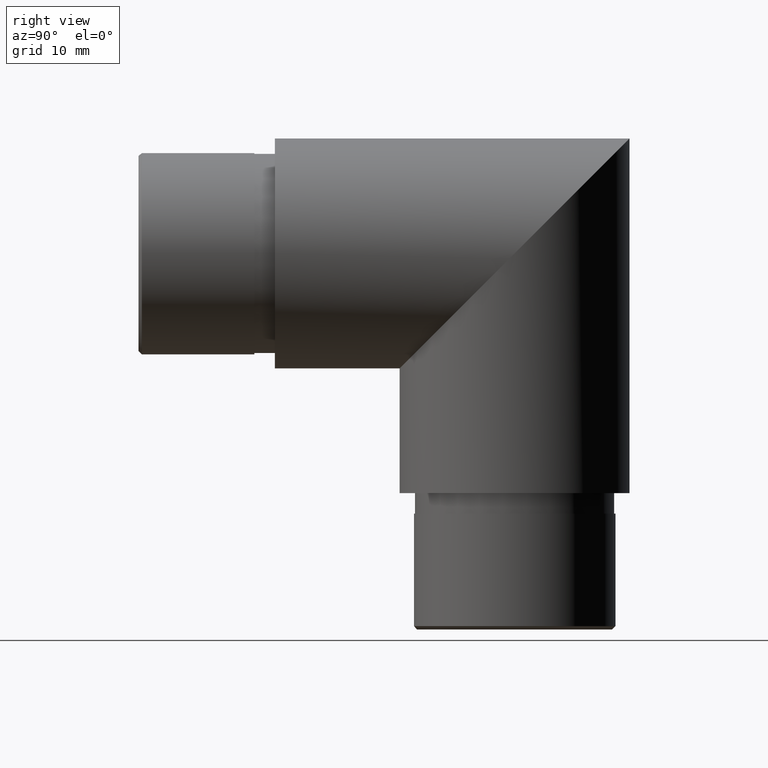
[diagram: clean part render]
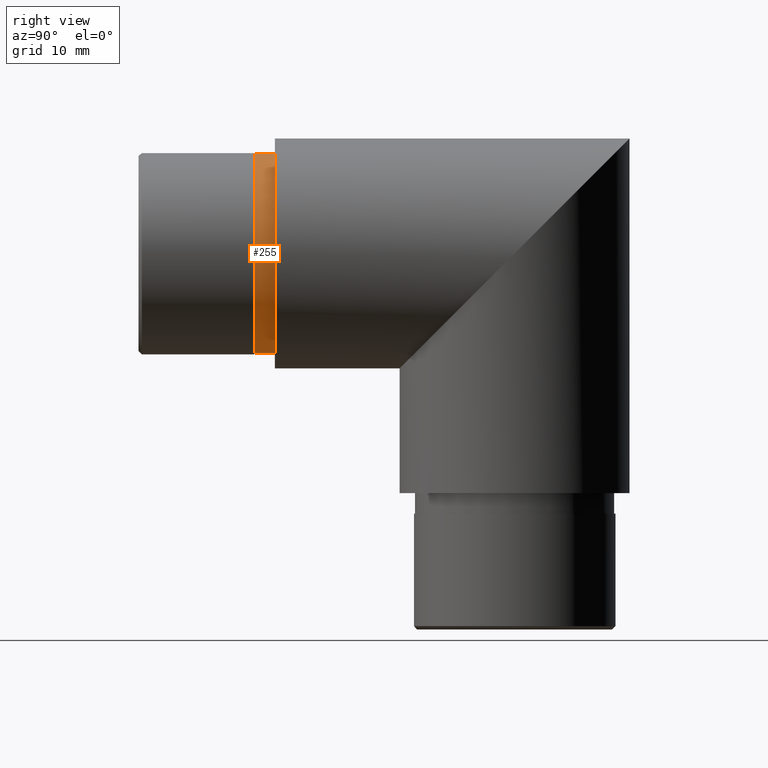
[diagram: same view with one face highlighted and labeled with its STEP entity id]
A machine part, right view. The second image highlights one B-rep face of the part: STEP entity #255.
In plain terms, the highlighted cylindrical surface (bore or boss wall) has radius 14.6 mm, axis along (-0, 1, -0).
Its self-contained STEP definition (entity closure, byte-faithful):
#149 = CIRCLE ( 'NONE', #7950, 14.60000000000000100 ) ;
#255 = ADVANCED_FACE ( 'NONE', ( #4914, #1433 ), #2023, .T. ) ;
#402 = VERTEX_POINT ( 'NONE', #506 ) ;
#506 = CARTESIAN_POINT ( 'NONE',  ( 0.0000000000000000000, 0.0000000000000000000, 14.60000000000000100 ) ) ;
#630 = CARTESIAN_POINT ( 'NONE',  ( 0.0000000000000000000, -3.000000000000000000, -14.60000000000000100 ) ) ;
#975 = EDGE_CURVE ( 'NONE', #402, #402, #149, .T. ) ;
#1433 = FACE_OUTER_BOUND ( 'NONE', #11873, .T. ) ;
#1894 = DIRECTION ( 'NONE',  ( 0.0000000000000000000, 0.0000000000000000000, -1.000000000000000000 ) ) ;
#2023 = CYLINDRICAL_SURFACE ( 'NONE', #4328, 14.60000000000000100 ) ;
#2721 = CARTESIAN_POINT ( 'NONE',  ( 0.0000000000000000000, 0.0000000000000000000, 0.0000000000000000000 ) ) ;
#2920 = DIRECTION ( 'NONE',  ( 0.0000000000000000000, -1.000000000000000000, 0.0000000000000000000 ) ) ;
#3666 = DIRECTION ( 'NONE',  ( 0.0000000000000000000, 0.0000000000000000000, 1.000000000000000000 ) ) ;
#4328 = AXIS2_PLACEMENT_3D ( 'NONE', #9208, #5569, #10133 ) ;
#4850 = ORIENTED_EDGE ( 'NONE', *, *, #975, .T. ) ;
#4914 = FACE_OUTER_BOUND ( 'NONE', #7224, .T. ) ;
#5279 = AXIS2_PLACEMENT_3D ( 'NONE', #11127, #2920, #1894 ) ;
#5439 = DIRECTION ( 'NONE',  ( -0.0000000000000000000, -1.000000000000000000, -0.0000000000000000000 ) ) ;
#5569 = DIRECTION ( 'NONE',  ( -0.0000000000000000000, 1.000000000000000000, -0.0000000000000000000 ) ) ;
#7171 = VERTEX_POINT ( 'NONE', #630 ) ;
#7224 = EDGE_LOOP ( 'NONE', ( #8206 ) ) ;
#7321 = EDGE_CURVE ( 'NONE', #7171, #7171, #11534, .T. ) ;
#7950 = AXIS2_PLACEMENT_3D ( 'NONE', #2721, #5439, #3666 ) ;
#8206 = ORIENTED_EDGE ( 'NONE', *, *, #7321, .F. ) ;
#9208 = CARTESIAN_POINT ( 'NONE',  ( 0.0000000000000000000, -3.000000000000000000, 0.0000000000000000000 ) ) ;
#10133 = DIRECTION ( 'NONE',  ( 0.0000000000000000000, 0.0000000000000000000, 1.000000000000000000 ) ) ;
#11127 = CARTESIAN_POINT ( 'NONE',  ( 0.0000000000000000000, -3.000000000000000000, 0.0000000000000000000 ) ) ;
#11534 = CIRCLE ( 'NONE', #5279, 14.60000000000000100 ) ;
#11873 = EDGE_LOOP ( 'NONE', ( #4850 ) ) ;